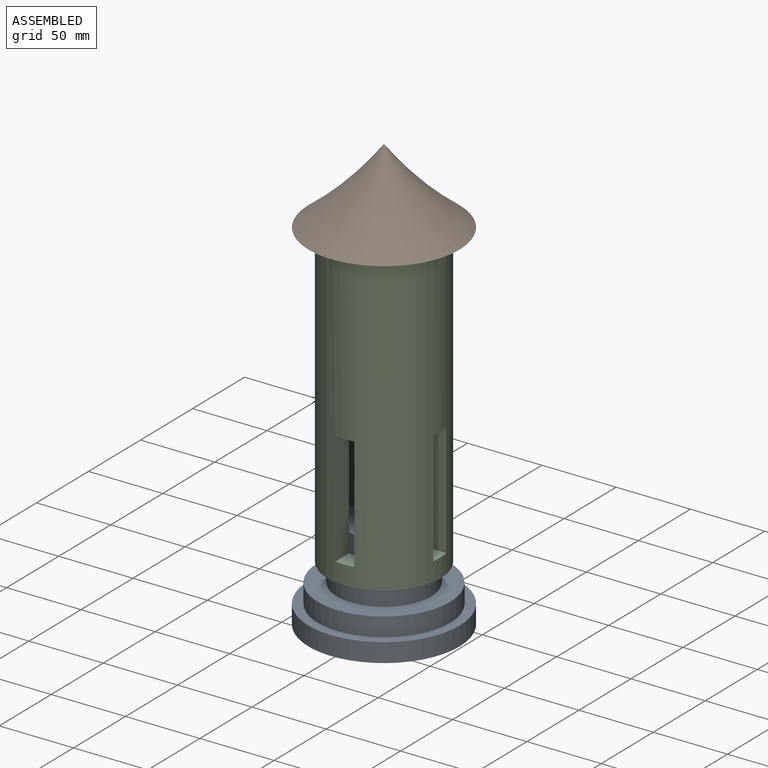
[diagram: assembled view]
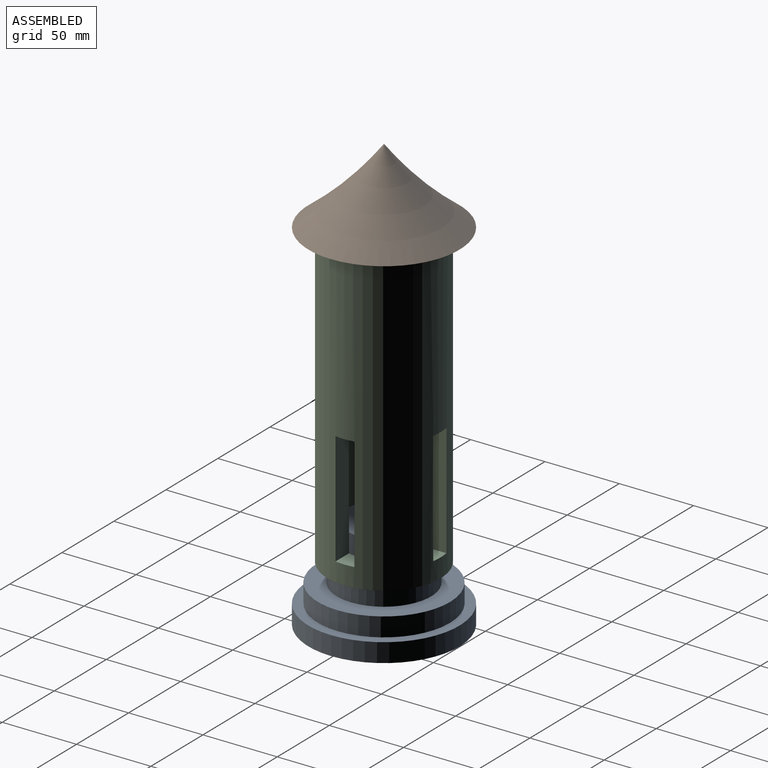
[diagram: assembled view, second angle]
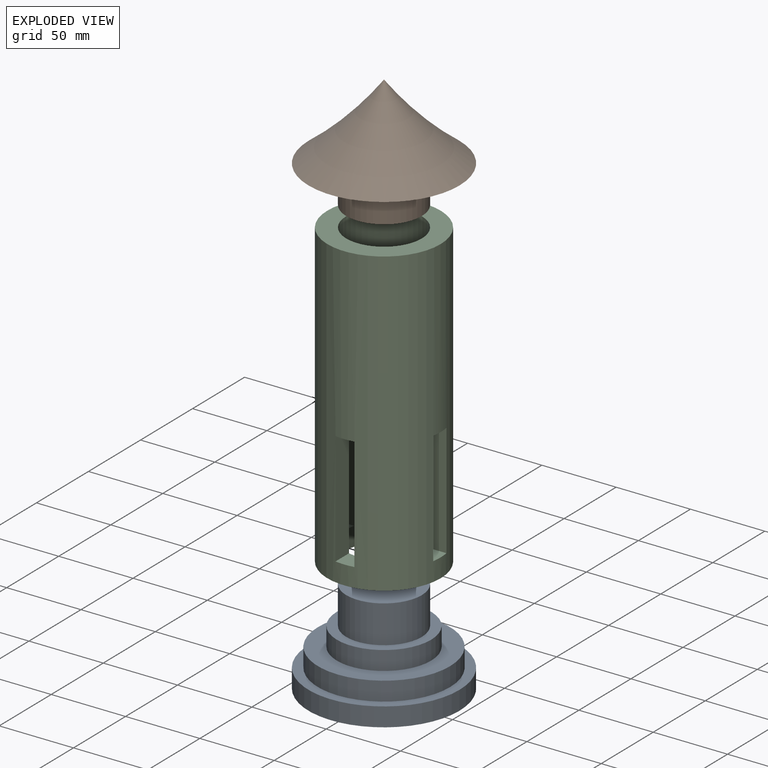
[diagram: exploded view]
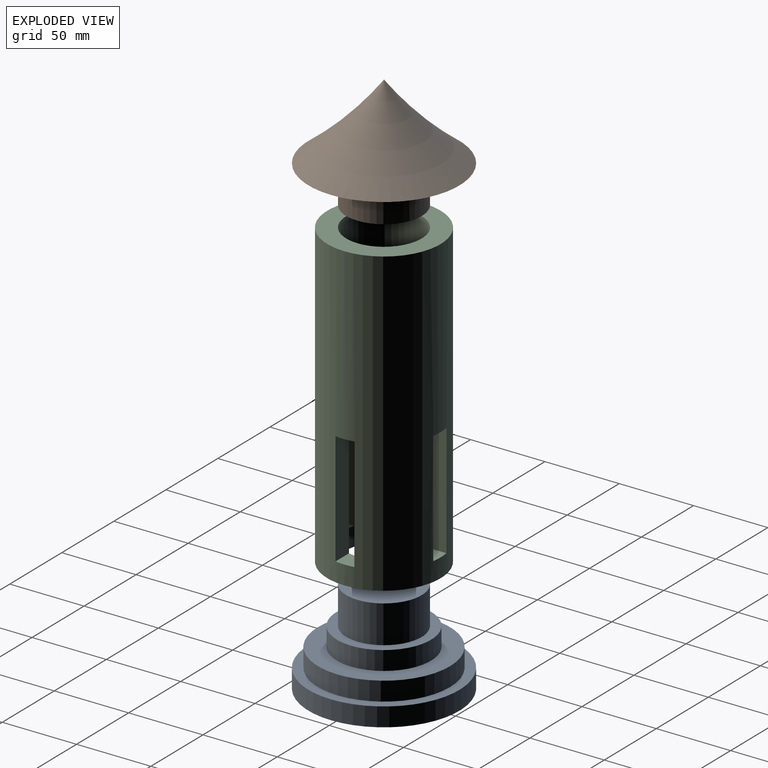
[diagram: exploded view, second angle]
ASSEMBLY  parts=3 mates=3
PART A: 10 faces, bbox 101.6x101.6x63.5 mm
  f0: cylinder r=25.4mm len=50.8mm, axis (0,0,1), area 4053.7mm2, adj f1,f3
  f1: plane 50.8x50.8mm, normal (0,0,1), area 2026.8mm2, adj f0
  f2: cylinder r=31.75mm len=63.5mm, axis (0,0,1), area 2533.5mm2, adj f3,f9
  f3: plane 63.5x63.5mm, normal (0,0,1), area 1140.1mm2, adj f0,f2
  f4: cone r=0mm half-angle=29.7deg, axis (0,0,-1), area 4085.2mm2, adj f5
  f5: plane 101.6x101.6mm, normal (0,0,-1), area 6080.5mm2, adj f4,f6
  f6: cylinder r=50.8mm len=101.6mm, axis (0,0,1), area 4053.7mm2, adj f5,f7
  f7: plane 101.6x101.6mm, normal (0,0,1), area 1900.2mm2, adj f6,f8
  f8: cylinder r=44.45mm len=88.9mm, axis (0,0,1), area 3547mm2, adj f7,f9
  f9: plane 88.9x88.9mm, normal (0,0,1), area 3040.2mm2, adj f2,f8
PART B: 4 faces, bbox 101.6x101.6x100.7 mm
  f0: cylinder r=25.4mm len=50.8mm, axis (0,0,-1), area 4053.7mm2, adj f1,f2
  f1: plane 50.8x50.8mm, normal (0,0,-1), area 2026.8mm2, adj f0
  f2: plane 101.6x101.6mm, normal (0,0,-1), area 6080.5mm2, adj f0,f3
  f3: torus R=201.02mm, axis (0,0,-1), area 10953.4mm2, adj f2
PART C: 20 faces, bbox 76.2x76.2x203.2 mm
  f0: plane 13.51x12.7mm, normal (0,0,1), area 162.4mm2, adj f6,f12,f14,f19
  f1: plane 13.51x12.7mm, normal (0,0,1), area 162.4mm2, adj f6,f15,f16,f19
  f2: plane 13.51x12.7mm, normal (0,0,1), area 162.4mm2, adj f6,f7,f8,f19
  f3: plane 13.51x12.7mm, normal (0,0,-1), area 162.4mm2, adj f6,f12,f14,f19
  f4: plane 13.51x12.7mm, normal (0,0,-1), area 162.4mm2, adj f6,f15,f16,f19
  f5: plane 13.51x12.7mm, normal (0,0,-1), area 162.4mm2, adj f6,f7,f8,f19
  f6: cylinder r=38.1mm len=203.2mm, axis (0,0,-1), area 44754.8mm2, adj f0,f1,f2,f3,f4,f5,f7,f8
  f7: plane 76.2x12.97mm, normal (-1,0,0), area 988.6mm2, adj f2,f5,f6,f19
  f8: plane 76.2x12.97mm, normal (1,0,0), area 988.6mm2, adj f2,f5,f6,f19
  f9: plane 76.2x76.2mm, normal (0,0,1), area 2533.5mm2, adj f6,f19
  f10: plane 76.2x76.2mm, normal (0,0,-1), area 2533.5mm2, adj f6,f19
  f11: plane 13.51x12.7mm, normal (0,0,1), area 162.4mm2, adj f6,f17,f18,f19
  f12: plane 76.2x12.97mm, normal (-1,0,0), area 988.6mm2, adj f0,f3,f6,f19
  f13: plane 13.51x12.7mm, normal (0,0,-1), area 162.4mm2, adj f6,f17,f18,f19
  f14: plane 76.2x12.97mm, normal (1,0,0), area 988.6mm2, adj f0,f3,f6,f19
  f15: plane 76.2x12.97mm, normal (0,1,0), area 988.6mm2, adj f1,f4,f6,f19
  f16: plane 76.2x12.97mm, normal (0,-1,0), area 988.6mm2, adj f1,f4,f6,f19
  f17: plane 76.2x12.97mm, normal (0,-1,0), area 988.6mm2, adj f6,f11,f13,f19
  f18: plane 76.2x12.97mm, normal (0,1,0), area 988.6mm2, adj f6,f11,f13,f19
  f19: cylinder r=25.4mm len=203.2mm, axis (0,0,1), area 28516.8mm2, adj f0,f1,f2,f3,f4,f5,f7,f8
PLACE A t=(1.75,3.06,-73.12)mm
PLACE B t=(1.75,3.06,79.28)mm
PLACE C t=(1.75,3.06,3.08)mm
MATE slider A.f2 <-> C.f6  axis (0,0,1) through (1.75,3.06,-98.52)mm
MATE slider C.f6 <-> B.f3  axis (0,0,1) through (1.75,3.06,104.68)mm
MATE planar B.f3 <-> C.f6  axis (0,0,-1) through (1.75,3.06,104.68)mm
